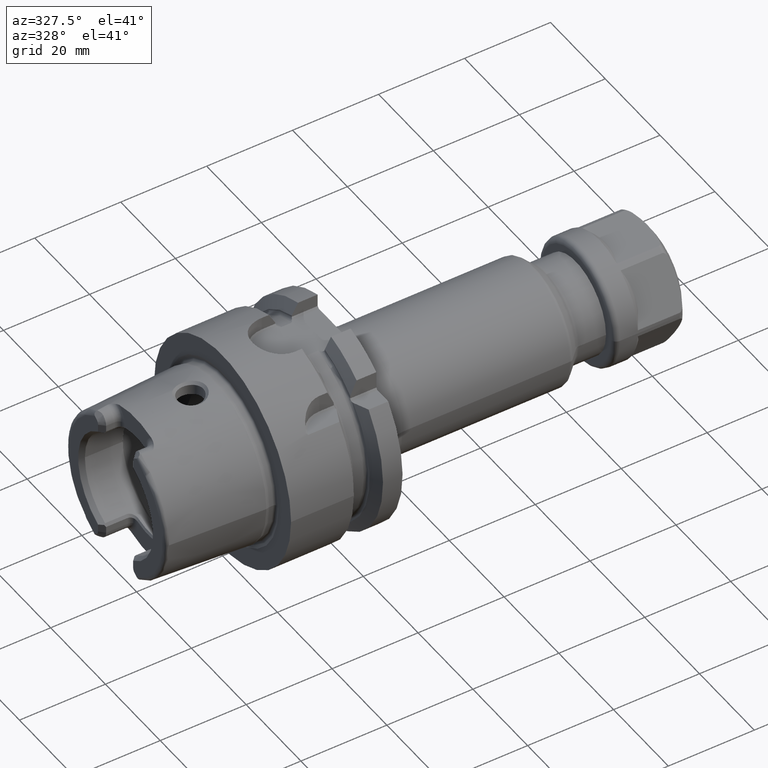
[diagram: clean part render]
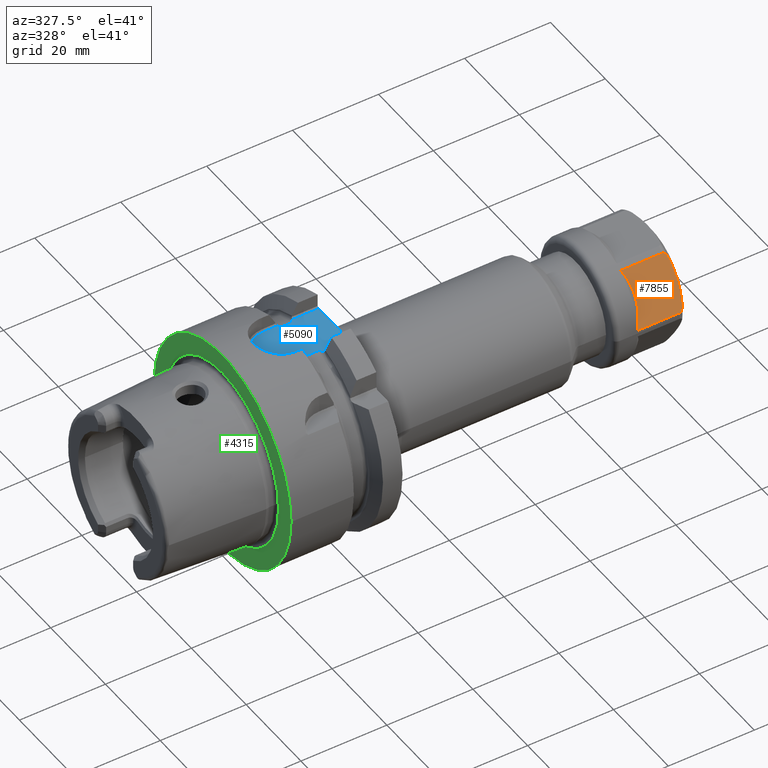
[diagram: same view with three faces highlighted in distinct colors, each labeled with its STEP entity id]
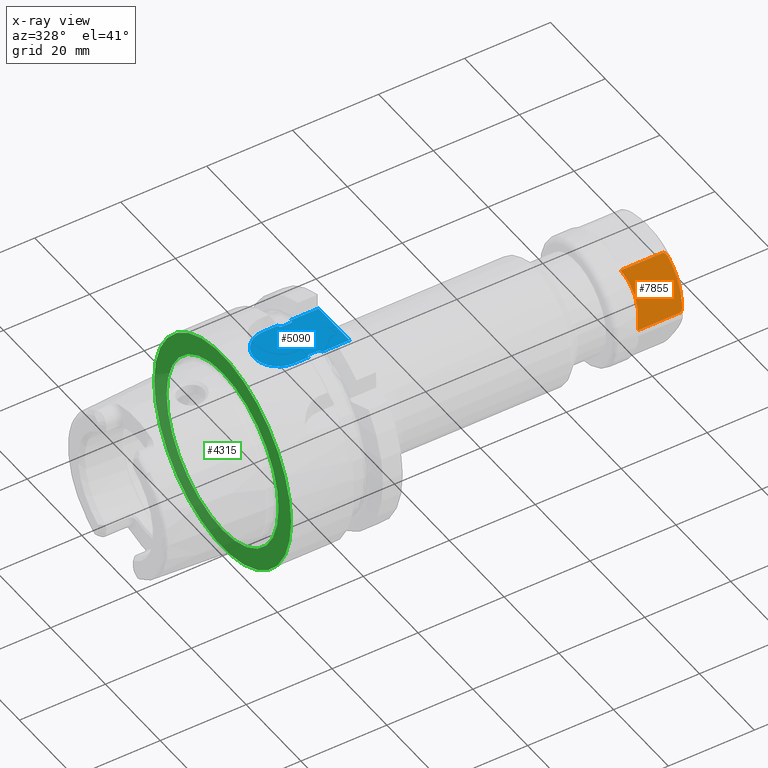
[diagram: x-ray of the same camera — body ghosted, the three highlighted faces saturated]
A machine part, auxiliary view with three faces highlighted in distinct colors.
The next image is the same camera in x-ray (body ghosted, the three faces saturated) — at least one of them is partly hidden behind the body in this view.
Their STEP definitions:

[orange] entity #7855 — the highlighted planar face has unit normal (0, 0.866, -0.5).
#7120=CARTESIAN_POINT('',(1.628445554338E1,-1.320442583614E1,2.129263567031E0));
#7121=CARTESIAN_POINT('',(1.625780514735E1,-1.326930180905E1,2.016895085765E0));
#7122=CARTESIAN_POINT('',(1.619635457926E1,-1.339611855140E1,1.797242044761E0));
#7123=CARTESIAN_POINT('',(1.606561669937E1,-1.358313235992E1,1.473324626685E0));
#7124=CARTESIAN_POINT('',(1.589737600801E1,-1.374600758383E1,1.191216463575E0));
#7125=CARTESIAN_POINT('',(1.569295978880E1,-1.387456556661E1,
9.685475056943E-1));
#7126=CARTESIAN_POINT('',(1.545738513995E1,-1.395784419192E1,
8.243046954560E-1));
#7127=CARTESIAN_POINT('',(1.528945671766E1,-1.397769760054E1,
7.899175830396E-1));
#7128=CARTESIAN_POINT('',(1.520192378865E1,-1.397769760054E1,
7.899175830396E-1));
#7130=CARTESIAN_POINT('',(1.520192378865E1,-7.672937494076E0,1.171008241696E1));
#7131=CARTESIAN_POINT('',(1.529096662636E1,-7.672937494076E0,1.171008241696E1));
#7132=CARTESIAN_POINT('',(1.546146335283E1,-7.693355425503E0,1.167471752234E1));
#7133=CARTESIAN_POINT('',(1.570142638899E1,-7.779918012653E0,1.152478672336E1));
#7134=CARTESIAN_POINT('',(1.590512360841E1,-7.910907250754E0,1.129790670773E1));
#7135=CARTESIAN_POINT('',(1.607010427330E1,-8.073198101160E0,1.101681070922E1));
#7136=CARTESIAN_POINT('',(1.619774346523E1,-8.257304148875E0,1.069792968060E1));
#7137=CARTESIAN_POINT('',(1.625821277607E1,-8.382325590146E0,1.048138619228E1));
#7138=CARTESIAN_POINT('',(1.628445554338E1,-8.446209258471E0,1.037073643297E1));
#7280=CARTESIAN_POINT('',(1.628445554338E1,-8.446209258471E0,1.037073643297E1));
#7281=CARTESIAN_POINT('',(1.644888995402E1,-8.846497582803E0,9.677416717550E0));
#7282=CARTESIAN_POINT('',(1.670318968294E1,-9.643182651782E0,8.297517700447E0));
#7283=CARTESIAN_POINT('',(1.683288207547E1,-1.082561227532E1,6.249489516108E0));
#7284=CARTESIAN_POINT('',(1.670310415631E1,-1.200772406709E1,4.202011832539E0));
#7285=CARTESIAN_POINT('',(1.644884551611E1,-1.280424568854E1,2.822395914862E0));
#7286=CARTESIAN_POINT('',(1.628445554338E1,-1.320442583614E1,2.129263567031E0));
#7329=CARTESIAN_POINT('',(5.501617668408E0,-1.397769760054E1,
7.899175830396E-1));
#7330=CARTESIAN_POINT('',(5.842086076927E0,-1.359953488221E1,1.444914624710E0));
#7331=CARTESIAN_POINT('',(6.405996362769E0,-1.286253981324E1,2.721427481748E0));
#7332=CARTESIAN_POINT('',(6.891809666009E0,-1.183413404708E1,4.502678732548E0));
#7333=CARTESIAN_POINT('',(7.055059837332E0,-1.082790609858E1,6.245515882315E0));
#7334=CARTESIAN_POINT('',(6.893391639045E0,-9.821015948899E0,7.989503690301E0));
#7335=CARTESIAN_POINT('',(6.407201587197E0,-8.789834090801E0,9.775552197029E0));
#7336=CARTESIAN_POINT('',(5.842427543074E0,-8.051699661006E0,1.105406556043E1));
#7337=CARTESIAN_POINT('',(5.501405986314E0,-7.672944079963E0,1.171008947045E1));
#7339=DIRECTION('',(9.999999999995E-1,6.789211628906E-7,-7.271250890031E-7));
#7340=VECTOR('',#7339,9.700517802338E0);
#7341=CARTESIAN_POINT('',(5.501405986314E0,-7.672944079963E0,1.171008947045E1));
#7342=LINE('',#7341,#7340);
#7343=DIRECTION('',(-1.E0,0.E0,0.E0));
#7344=VECTOR('',#7343,9.700306120238E0);
#7345=CARTESIAN_POINT('',(1.520192378865E1,-1.397769760054E1,
7.899175830396E-1));
#7346=LINE('',#7345,#7344);
#7506=VERTEX_POINT('',#7280);
#7507=VERTEX_POINT('',#7286);
#7518=VERTEX_POINT('',#7128);
#7519=VERTEX_POINT('',#7130);
#7530=CARTESIAN_POINT('',(5.501103096150E0,-1.397821137922E1,
7.899467055235E-1));
#7531=CARTESIAN_POINT('',(5.501103096150E0,-7.673107321420E0,1.171034152008E1));
#7532=VERTEX_POINT('',#7530);
#7533=VERTEX_POINT('',#7531);
#7839=CARTESIAN_POINT('',(1.78E1,-1.443375672974E1,0.E0));
#7840=DIRECTION('',(0.E0,8.660254037844E-1,-5.E-1));
#7841=DIRECTION('',(0.E0,5.E-1,8.660254037844E-1));
#7842=AXIS2_PLACEMENT_3D('',#7839,#7840,#7841);
#7843=PLANE('',#7842);
#7845=ORIENTED_EDGE('',*,*,#7844,.T.);
#7847=ORIENTED_EDGE('',*,*,#7846,.T.);
#7848=ORIENTED_EDGE('',*,*,#7717,.T.);
#7849=ORIENTED_EDGE('',*,*,#7823,.T.);
#7850=ORIENTED_EDGE('',*,*,#7707,.T.);
#7852=ORIENTED_EDGE('',*,*,#7851,.T.);
#7853=EDGE_LOOP('',(#7845,#7847,#7848,#7849,#7850,#7852));
#7854=FACE_OUTER_BOUND('',#7853,.F.);
#7855=ADVANCED_FACE('',(#7854),#7843,.F.);
#7129=B_SPLINE_CURVE_WITH_KNOTS('',3,(#7120,#7121,#7122,#7123,#7124,#7125,#7126,
#7127,#7128),.UNSPECIFIED.,.F.,.F.,(4,1,1,1,1,1,4),(0.E0,1.666666666667E-1,
3.333333333333E-1,5.E-1,6.666666666667E-1,8.333333333333E-1,1.E0),
.UNSPECIFIED.);
#7139=B_SPLINE_CURVE_WITH_KNOTS('',3,(#7130,#7131,#7132,#7133,#7134,#7135,#7136,
#7137,#7138),.UNSPECIFIED.,.F.,.F.,(4,1,1,1,1,1,4),(0.E0,1.666666666667E-1,
3.333333333333E-1,5.E-1,6.666666666667E-1,8.333333333333E-1,1.E0),
.UNSPECIFIED.);
#7287=B_SPLINE_CURVE_WITH_KNOTS('',3,(#7280,#7281,#7282,#7283,#7284,#7285,
#7286),.UNSPECIFIED.,.F.,.F.,(4,1,1,1,4),(0.E0,2.5E-1,5.E-1,7.5E-1,1.E0),
.UNSPECIFIED.);
#7338=B_SPLINE_CURVE_WITH_KNOTS('',3,(#7329,#7330,#7331,#7332,#7333,#7334,#7335,
#7336,#7337),.UNSPECIFIED.,.F.,.F.,(4,1,1,1,1,1,4),(0.E0,1.666666666667E-1,
3.333333333333E-1,5.E-1,6.666666666667E-1,8.333333333333E-1,1.E0),
.UNSPECIFIED.);
#7707=EDGE_CURVE('',#7507,#7518,#7129,.T.);
#7717=EDGE_CURVE('',#7519,#7506,#7139,.T.);
#7823=EDGE_CURVE('',#7506,#7507,#7287,.T.);
#7844=EDGE_CURVE('',#7532,#7533,#7338,.T.);
#7846=EDGE_CURVE('',#7533,#7519,#7342,.T.);
#7851=EDGE_CURVE('',#7518,#7532,#7346,.T.);

[blue] entity #5090 — the highlighted planar face has unit normal (0, 0, 1).
#1243=DIRECTION('',(-1.E0,0.E0,0.E0));
#1244=VECTOR('',#1243,2.325E0);
#1245=CARTESIAN_POINT('',(1.91625E1,4.936154880066E0,2.09E1));
#1246=LINE('',#1245,#1244);
#1256=DIRECTION('',(1.E0,0.E0,0.E0));
#1257=VECTOR('',#1256,2.325E0);
#1258=CARTESIAN_POINT('',(1.68375E1,-4.936154880066E0,2.09E1));
#1259=LINE('',#1258,#1257);
#1410=DIRECTION('',(0.E0,9.999999999998E-1,6.277821968150E-7));
#1411=VECTOR('',#1410,3.570573431247E0);
#1412=CARTESIAN_POINT('',(2.595E1,-5.6175E0,2.09E1));
#1413=LINE('',#1412,#1411);
#1419=DIRECTION('',(0.E0,1.E0,-2.151771613576E-7));
#1420=VECTOR('',#1419,3.570557337619E0);
#1421=CARTESIAN_POINT('',(2.595E1,2.046942662381E0,2.090000076830E1));
#1422=LINE('',#1421,#1420);
#1612=CARTESIAN_POINT('',(2.595071432215E1,-1.814810210603E-4,2.09E1));
#1613=CARTESIAN_POINT('',(2.595071429390E1,-2.278648878721E-1,2.09E1));
#1614=CARTESIAN_POINT('',(2.595060197581E1,-6.830528713898E-1,
2.090000029887E1));
#1615=CARTESIAN_POINT('',(2.595020458113E1,-1.365381077929E0,2.089999895395E1));
#1616=CARTESIAN_POINT('',(2.595E1,-1.819798609702E0,2.090000224154E1));
#1617=CARTESIAN_POINT('',(2.595E1,-2.046926568754E0,2.090000224154E1));
#1619=DIRECTION('',(-1.E0,0.E0,0.E0));
#1620=VECTOR('',#1619,6.315964852731E0);
#1621=CARTESIAN_POINT('',(2.595E1,-5.6175E0,2.09E1));
#1622=LINE('',#1621,#1620);
#1623=CARTESIAN_POINT('',(1.91625E1,-4.936154880066E0,2.09E1));
#1624=CARTESIAN_POINT('',(1.918512572534E1,-4.936154880066E0,2.09E1));
#1625=CARTESIAN_POINT('',(1.922927798714E1,-4.944905345685E0,2.09E1));
#1626=CARTESIAN_POINT('',(1.929364299727E1,-4.982466702461E0,2.09E1));
#1627=CARTESIAN_POINT('',(1.935193358380E1,-5.037701592377E0,2.09E1));
#1628=CARTESIAN_POINT('',(1.940696398688E1,-5.108493844033E0,2.09E1));
#1629=CARTESIAN_POINT('',(1.945754115550E1,-5.190349964585E0,2.09E1));
#1630=CARTESIAN_POINT('',(1.950483688118E1,-5.281854502074E0,2.09E1));
#1631=CARTESIAN_POINT('',(1.954984677491E1,-5.383296798535E0,2.09E1));
#1632=CARTESIAN_POINT('',(1.959291205605E1,-5.494511889336E0,2.09E1));
#1633=CARTESIAN_POINT('',(1.962051721705E1,-5.575394790376E0,2.09E1));
#1634=CARTESIAN_POINT('',(1.963403514727E1,-5.6175E0,2.09E1));
#1636=CARTESIAN_POINT('',(1.636596485273E1,-5.6175E0,2.09E1));
#1637=CARTESIAN_POINT('',(1.637723073093E1,-5.582409408806E0,2.09E1));
#1638=CARTESIAN_POINT('',(1.640088079254E1,-5.512208770329E0,2.09E1));
#1639=CARTESIAN_POINT('',(1.644127677987E1,-5.405169222578E0,2.09E1));
#1640=CARTESIAN_POINT('',(1.648542523065E1,-5.302559468502E0,2.09E1));
#1641=CARTESIAN_POINT('',(1.653267499575E1,-5.208006963190E0,2.09E1));
#1642=CARTESIAN_POINT('',(1.658270514026E1,-5.123923103323E0,2.09E1));
#1643=CARTESIAN_POINT('',(1.663659931211E1,-5.050897729353E0,2.09E1));
#1644=CARTESIAN_POINT('',(1.669594649704E1,-4.990432118684E0,2.09E1));
#1645=CARTESIAN_POINT('',(1.676415776210E1,-4.946912528541E0,2.09E1));
#1646=CARTESIAN_POINT('',(1.681240342288E1,-4.936154880066E0,2.09E1));
#1647=CARTESIAN_POINT('',(1.68375E1,-4.936154880066E0,2.09E1));
#1649=DIRECTION('',(-1.E0,-7.852701927823E-8,-7.858421558079E-8));
#1650=VECTOR('',#1649,3.398464844756E0);
#1651=CARTESIAN_POINT('',(1.636596485273E1,-5.6175E0,2.09E1));
#1652=LINE('',#1651,#1650);
#1653=CARTESIAN_POINT('',(1.29675E1,0.E0,2.089999824116E1));
#1654=DIRECTION('',(0.E0,0.E0,-1.E0));
#1655=DIRECTION('',(0.E0,-1.E0,0.E0));
#1656=AXIS2_PLACEMENT_3D('',#1653,#1654,#1655);
#1658=DIRECTION('',(1.E0,-7.853913086518E-8,7.857210474843E-8));
#1659=VECTOR('',#1658,3.398464845393E0);
#1660=CARTESIAN_POINT('',(1.296750000734E1,5.617500266912E0,2.089999973298E1));
#1661=LINE('',#1660,#1659);
#1662=CARTESIAN_POINT('',(1.68375E1,4.936154880066E0,2.09E1));
#1663=CARTESIAN_POINT('',(1.681506439560E1,4.936154880066E0,2.09E1));
#1664=CARTESIAN_POINT('',(1.677123088673E1,4.944673497632E0,2.09E1));
#1665=CARTESIAN_POINT('',(1.670637256749E1,4.982476421130E0,2.09E1));
#1666=CARTESIAN_POINT('',(1.664900590224E1,5.036748664290E0,2.09E1));
#1667=CARTESIAN_POINT('',(1.659405185059E1,5.106990956188E0,2.09E1));
#1668=CARTESIAN_POINT('',(1.654315187720E1,5.189091223446E0,2.09E1));
#1669=CARTESIAN_POINT('',(1.649561034933E1,5.280901992625E0,2.09E1));
#1670=CARTESIAN_POINT('',(1.645046741239E1,5.382525577117E0,2.09E1));
#1671=CARTESIAN_POINT('',(1.640725659792E1,5.494029910782E0,2.09E1));
#1672=CARTESIAN_POINT('',(1.637953976626E1,5.575217300602E0,2.09E1));
#1673=CARTESIAN_POINT('',(1.636596485273E1,5.6175E0,2.09E1));
#1675=CARTESIAN_POINT('',(1.963403514727E1,5.6175E0,2.09E1));
#1676=CARTESIAN_POINT('',(1.962121105487E1,5.577555933860E0,2.09E1));
#1677=CARTESIAN_POINT('',(1.959433966091E1,5.498305669547E0,2.09E1));
#1678=CARTESIAN_POINT('',(1.954802760583E1,5.378400607294E0,2.09E1));
#1679=CARTESIAN_POINT('',(1.949825271637E1,5.267721187528E0,2.09E1));
#1680=CARTESIAN_POINT('',(1.944679938215E1,5.171347555465E0,2.09E1));
#1681=CARTESIAN_POINT('',(1.939476256373E1,5.091349730416E0,2.09E1));
#1682=CARTESIAN_POINT('',(1.934209978086E1,5.027407982916E0,2.09E1));
#1683=CARTESIAN_POINT('',(1.928722183018E1,4.978138118530E0,2.09E1));
#1684=CARTESIAN_POINT('',(1.922686285427E1,4.944417861259E0,2.09E1));
#1685=CARTESIAN_POINT('',(1.918440943347E1,4.936154880066E0,2.09E1));
#1686=CARTESIAN_POINT('',(1.91625E1,4.936154880066E0,2.09E1));
#1688=DIRECTION('',(1.E0,0.E0,0.E0));
#1689=VECTOR('',#1688,6.315964852731E0);
#1690=CARTESIAN_POINT('',(1.963403514727E1,5.6175E0,2.09E1));
#1691=LINE('',#1690,#1689);
#1692=CARTESIAN_POINT('',(2.595E1,2.046942662381E0,2.090000076830E1));
#1693=CARTESIAN_POINT('',(2.595E1,1.819787875244E0,2.090000076830E1));
#1694=CARTESIAN_POINT('',(2.595020463222E1,1.365283685141E0,2.089999964146E1));
#1695=CARTESIAN_POINT('',(2.595060210671E1,6.828101616889E-1,2.090000010244E1));
#1696=CARTESIAN_POINT('',(2.595071435040E1,2.275408499473E-1,2.09E1));
#1697=CARTESIAN_POINT('',(2.595071432215E1,-1.814810210603E-4,2.09E1));
#3073=CARTESIAN_POINT('',(1.68375E1,-4.936154880066E0,2.09E1));
#3075=VERTEX_POINT('',#3073);
#3076=CARTESIAN_POINT('',(1.68375E1,4.936154880066E0,2.09E1));
#3078=VERTEX_POINT('',#3076);
#3081=CARTESIAN_POINT('',(1.91625E1,-4.936154880066E0,2.09E1));
#3083=VERTEX_POINT('',#3081);
#3084=CARTESIAN_POINT('',(1.91625E1,4.936154880066E0,2.09E1));
#3086=VERTEX_POINT('',#3084);
#3090=VERTEX_POINT('',#1673);
#3091=VERTEX_POINT('',#1636);
#3092=VERTEX_POINT('',#1675);
#3093=VERTEX_POINT('',#1634);
#3117=CARTESIAN_POINT('',(1.29675E1,-5.617499842972E0,2.089999824116E1));
#3118=CARTESIAN_POINT('',(1.29675E1,5.617499842972E0,2.089999824116E1));
#3119=VERTEX_POINT('',#3117);
#3120=VERTEX_POINT('',#3118);
#3129=CARTESIAN_POINT('',(2.595E1,-5.6175E0,2.09E1));
#3131=VERTEX_POINT('',#3129);
#3134=CARTESIAN_POINT('',(2.595E1,5.6175E0,2.09E1));
#3136=VERTEX_POINT('',#3134);
#3313=CARTESIAN_POINT('',(2.595E1,-2.046950455467E0,2.089999985246E1));
#3314=VERTEX_POINT('',#3313);
#3315=VERTEX_POINT('',#1612);
#3320=VERTEX_POINT('',#1692);
#5062=CARTESIAN_POINT('',(0.E0,0.E0,2.09E1));
#5063=DIRECTION('',(0.E0,0.E0,1.E0));
#5064=DIRECTION('',(1.E0,0.E0,0.E0));
#5065=AXIS2_PLACEMENT_3D('',#5062,#5063,#5064);
#5066=PLANE('',#5065);
#5068=ORIENTED_EDGE('',*,*,#5067,.T.);
#5069=ORIENTED_EDGE('',*,*,#4803,.F.);
#5071=ORIENTED_EDGE('',*,*,#5070,.T.);
#5073=ORIENTED_EDGE('',*,*,#5072,.F.);
#5074=ORIENTED_EDGE('',*,*,#4715,.F.);
#5075=ORIENTED_EDGE('',*,*,#4666,.F.);
#5077=ORIENTED_EDGE('',*,*,#5076,.T.);
#5079=ORIENTED_EDGE('',*,*,#5078,.T.);
#5080=ORIENTED_EDGE('',*,*,#5040,.T.);
#5081=ORIENTED_EDGE('',*,*,#4683,.F.);
#5082=ORIENTED_EDGE('',*,*,#4702,.F.);
#5084=ORIENTED_EDGE('',*,*,#5083,.F.);
#5085=ORIENTED_EDGE('',*,*,#5057,.T.);
#5086=ORIENTED_EDGE('',*,*,#4816,.F.);
#5087=ORIENTED_EDGE('',*,*,#4774,.T.);
#5088=EDGE_LOOP('',(#5068,#5069,#5071,#5073,#5074,#5075,#5077,#5079,#5080,#5081,
#5082,#5084,#5085,#5086,#5087));
#5089=FACE_OUTER_BOUND('',#5088,.F.);
#5090=ADVANCED_FACE('',(#5089),#5066,.T.);
#1618=B_SPLINE_CURVE_WITH_KNOTS('',3,(#1612,#1613,#1614,#1615,#1616,#1617),
.UNSPECIFIED.,.F.,.F.,(4,1,1,4),(0.E0,3.333333333333E-1,6.666666666667E-1,1.E0),
.UNSPECIFIED.);
#1635=B_SPLINE_CURVE_WITH_KNOTS('',3,(#1623,#1624,#1625,#1626,#1627,#1628,#1629,
#1630,#1631,#1632,#1633,#1634),.UNSPECIFIED.,.F.,.F.,(4,1,1,1,1,1,1,1,1,4),
(0.E0,1.111111111111E-1,2.222222222222E-1,3.333333333333E-1,4.444444444444E-1,
5.555555555556E-1,6.666666666667E-1,7.777777777778E-1,8.888888888889E-1,1.E0),
.UNSPECIFIED.);
#1648=B_SPLINE_CURVE_WITH_KNOTS('',3,(#1636,#1637,#1638,#1639,#1640,#1641,#1642,
#1643,#1644,#1645,#1646,#1647),.UNSPECIFIED.,.F.,.F.,(4,1,1,1,1,1,1,1,1,4),
(0.E0,1.111111111111E-1,2.222222222222E-1,3.333333333333E-1,4.444444444444E-1,
5.555555555556E-1,6.666666666667E-1,7.777777777778E-1,8.888888888889E-1,1.E0),
.UNSPECIFIED.);
#1657=CIRCLE('',#1656,5.617499842972E0);
#1674=B_SPLINE_CURVE_WITH_KNOTS('',3,(#1662,#1663,#1664,#1665,#1666,#1667,#1668,
#1669,#1670,#1671,#1672,#1673),.UNSPECIFIED.,.F.,.F.,(4,1,1,1,1,1,1,1,1,4),
(0.E0,1.111111111111E-1,2.222222222222E-1,3.333333333333E-1,4.444444444444E-1,
5.555555555556E-1,6.666666666667E-1,7.777777777778E-1,8.888888888889E-1,1.E0),
.UNSPECIFIED.);
#1687=B_SPLINE_CURVE_WITH_KNOTS('',3,(#1675,#1676,#1677,#1678,#1679,#1680,#1681,
#1682,#1683,#1684,#1685,#1686),.UNSPECIFIED.,.F.,.F.,(4,1,1,1,1,1,1,1,1,4),
(0.E0,1.111111111111E-1,2.222222222222E-1,3.333333333333E-1,4.444444444444E-1,
5.555555555556E-1,6.666666666667E-1,7.777777777778E-1,8.888888888889E-1,1.E0),
.UNSPECIFIED.);
#1698=B_SPLINE_CURVE_WITH_KNOTS('',3,(#1692,#1693,#1694,#1695,#1696,#1697),
.UNSPECIFIED.,.F.,.F.,(4,1,1,4),(0.E0,3.333333333333E-1,6.666666666667E-1,1.E0),
.UNSPECIFIED.);
#4666=EDGE_CURVE('',#3091,#3075,#1648,.T.);
#4683=EDGE_CURVE('',#3078,#3090,#1674,.T.);
#4702=EDGE_CURVE('',#3086,#3078,#1246,.T.);
#4715=EDGE_CURVE('',#3075,#3083,#1259,.T.);
#4774=EDGE_CURVE('',#3320,#3315,#1698,.T.);
#4803=EDGE_CURVE('',#3131,#3314,#1413,.T.);
#4816=EDGE_CURVE('',#3320,#3136,#1422,.T.);
#5040=EDGE_CURVE('',#3120,#3090,#1661,.T.);
#5057=EDGE_CURVE('',#3092,#3136,#1691,.T.);
#5067=EDGE_CURVE('',#3315,#3314,#1618,.T.);
#5070=EDGE_CURVE('',#3131,#3093,#1622,.T.);
#5072=EDGE_CURVE('',#3083,#3093,#1635,.T.);
#5076=EDGE_CURVE('',#3091,#3119,#1652,.T.);
#5078=EDGE_CURVE('',#3119,#3120,#1657,.T.);
#5083=EDGE_CURVE('',#3092,#3086,#1687,.T.);

[green] entity #4315 — the highlighted planar face has unit normal (1, 0, 0).
#867=CARTESIAN_POINT('',(0.E0,0.E0,0.E0));
#868=DIRECTION('',(1.E0,0.E0,0.E0));
#869=DIRECTION('',(0.E0,1.E0,0.E0));
#870=AXIS2_PLACEMENT_3D('',#867,#868,#869);
#872=CARTESIAN_POINT('',(0.E0,0.E0,0.E0));
#873=DIRECTION('',(-1.E0,0.E0,0.E0));
#874=DIRECTION('',(0.E0,1.E0,0.E0));
#875=AXIS2_PLACEMENT_3D('',#872,#873,#874);
#877=CARTESIAN_POINT('',(0.E0,0.E0,0.E0));
#878=DIRECTION('',(-1.E0,0.E0,0.E0));
#879=DIRECTION('',(0.E0,-1.E0,0.E0));
#880=AXIS2_PLACEMENT_3D('',#877,#878,#879);
#882=CARTESIAN_POINT('',(0.E0,0.E0,0.E0));
#883=DIRECTION('',(-1.E0,0.E0,0.E0));
#884=DIRECTION('',(0.E0,1.E0,0.E0));
#885=AXIS2_PLACEMENT_3D('',#882,#883,#884);
#2857=CARTESIAN_POINT('',(0.E0,-2.04248E1,0.E0));
#2858=VERTEX_POINT('',#2857);
#2859=CARTESIAN_POINT('',(0.E0,2.04248E1,0.E0));
#2860=VERTEX_POINT('',#2859);
#3199=CARTESIAN_POINT('',(0.E0,2.5E1,0.E0));
#3200=CARTESIAN_POINT('',(0.E0,-2.5E1,0.E0));
#3201=VERTEX_POINT('',#3199);
#3202=VERTEX_POINT('',#3200);
#4300=CARTESIAN_POINT('',(0.E0,0.E0,0.E0));
#4301=DIRECTION('',(1.E0,0.E0,0.E0));
#4302=DIRECTION('',(0.E0,-1.E0,0.E0));
#4303=AXIS2_PLACEMENT_3D('',#4300,#4301,#4302);
#4304=PLANE('',#4303);
#4306=ORIENTED_EDGE('',*,*,#4305,.T.);
#4308=ORIENTED_EDGE('',*,*,#4307,.F.);
#4309=EDGE_LOOP('',(#4306,#4308));
#4310=FACE_OUTER_BOUND('',#4309,.F.);
#4311=ORIENTED_EDGE('',*,*,#4295,.T.);
#4312=ORIENTED_EDGE('',*,*,#4279,.T.);
#4313=EDGE_LOOP('',(#4311,#4312));
#4314=FACE_BOUND('',#4313,.F.);
#4315=ADVANCED_FACE('',(#4310,#4314),#4304,.F.);
#871=CIRCLE('',#870,2.5E1);
#876=CIRCLE('',#875,2.5E1);
#881=CIRCLE('',#880,2.04248E1);
#886=CIRCLE('',#885,2.04248E1);
#4279=EDGE_CURVE('',#2860,#2858,#886,.T.);
#4295=EDGE_CURVE('',#2858,#2860,#881,.T.);
#4305=EDGE_CURVE('',#3201,#3202,#871,.T.);
#4307=EDGE_CURVE('',#3201,#3202,#876,.T.);